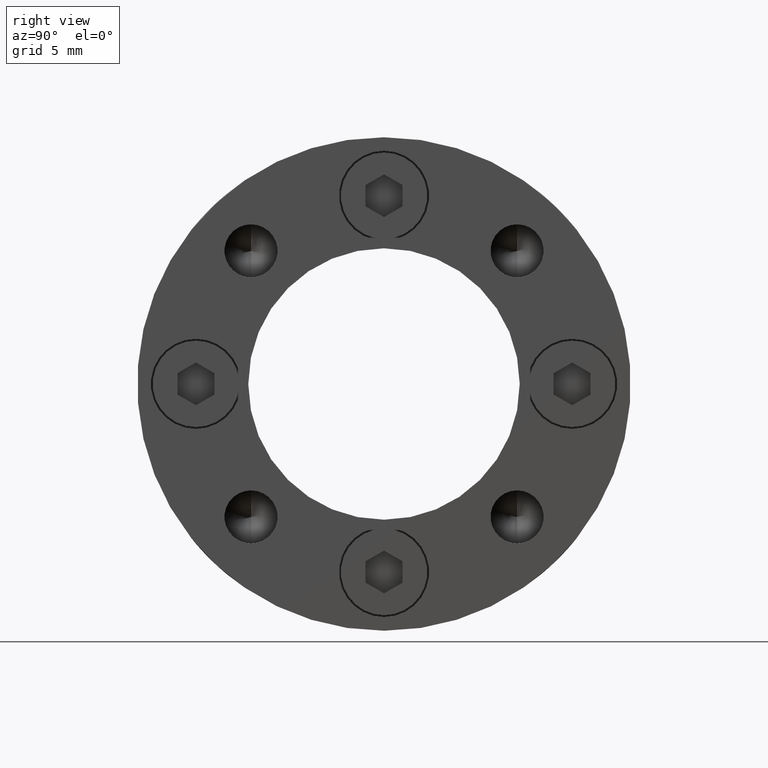
[diagram: clean part render]
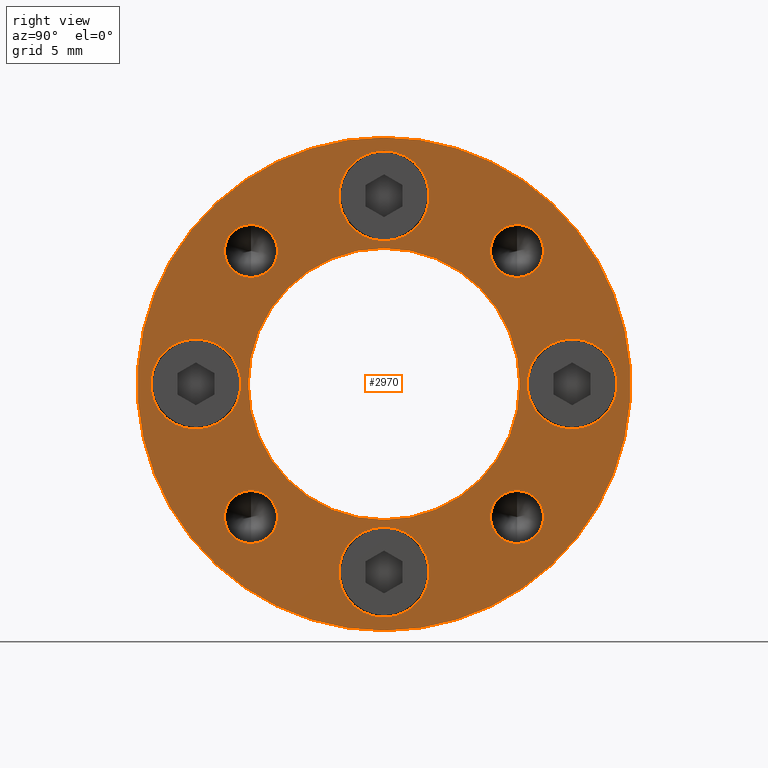
[diagram: same view with one face highlighted and labeled with its STEP entity id]
A machine part, right view. The second image highlights one B-rep face of the part: STEP entity #2970.
In plain terms, the highlighted planar face has unit normal (1, 0, 0).
Its self-contained STEP definition (entity closure, byte-faithful):
#214 = VERTEX_POINT ( 'NONE', #3243 ) ;
#219 = VERTEX_POINT ( 'NONE', #3251 ) ;
#249 = VERTEX_POINT ( 'NONE', #3268 ) ;
#300 = CARTESIAN_POINT ( 'NONE',  ( 17.99999999999999300, -1.867586000000000000E-015, -15.25000000000000700 ) ) ;
#301 = DIRECTION ( 'NONE',  ( -1.000000000000000000, -0.0000000000000000000, -0.0000000000000000000 ) ) ;
#302 = DIRECTION ( 'NONE',  ( 0.0000000000000000000, 0.0000000000000000000, -1.000000000000000000 ) ) ;
#374 = DIRECTION ( 'NONE',  ( -1.000000000000000000, -0.0000000000000000000, -0.0000000000000000000 ) ) ;
#375 = CARTESIAN_POINT ( 'NONE',  ( 17.99999999999999300, -15.25000000000000700, 9.337931999999999500E-016 ) ) ;
#377 = DIRECTION ( 'NONE',  ( 0.0000000000000000000, 0.0000000000000000000, -1.000000000000000000 ) ) ;
#433 = VERTEX_POINT ( 'NONE', #3319 ) ;
#449 = VERTEX_POINT ( 'NONE', #3328 ) ;
#455 = VERTEX_POINT ( 'NONE', #3341 ) ;
#457 = VERTEX_POINT ( 'NONE', #3338 ) ;
#464 = VERTEX_POINT ( 'NONE', #3342 ) ;
#467 = VERTEX_POINT ( 'NONE', #3343 ) ;
#469 = VERTEX_POINT ( 'NONE', #3347 ) ;
#470 = VERTEX_POINT ( 'NONE', #3351 ) ;
#476 = VERTEX_POINT ( 'NONE', #3353 ) ;
#486 = VERTEX_POINT ( 'NONE', #3357 ) ;
#577 = EDGE_CURVE ( 'NONE', #457, #467, #2010, .T. ) ;
#581 = EDGE_CURVE ( 'NONE', #455, #469, #2013, .T. ) ;
#585 = EDGE_CURVE ( 'NONE', #486, #449, #2019, .T. ) ;
#599 = EDGE_CURVE ( 'NONE', #449, #486, #2044, .T. ) ;
#600 = EDGE_CURVE ( 'NONE', #469, #455, #2045, .T. ) ;
#601 = EDGE_CURVE ( 'NONE', #467, #457, #2046, .T. ) ;
#602 = EDGE_CURVE ( 'NONE', #476, #470, #2047, .T. ) ;
#604 = EDGE_CURVE ( 'NONE', #433, #464, #2048, .T. ) ;
#606 = EDGE_CURVE ( 'NONE', #214, #1870, #2050, .T. ) ;
#608 = EDGE_CURVE ( 'NONE', #249, #219, #2052, .T. ) ;
#610 = EDGE_CURVE ( 'NONE', #1868, #1871, #2054, .T. ) ;
#611 = EDGE_CURVE ( 'NONE', #1879, #1877, #2055, .T. ) ;
#612 = EDGE_CURVE ( 'NONE', #1878, #1874, #2056, .T. ) ;
#654 = EDGE_CURVE ( 'NONE', #464, #433, #1513, .T. ) ;
#659 = EDGE_CURVE ( 'NONE', #470, #476, #1521, .T. ) ;
#662 = EDGE_CURVE ( 'NONE', #1874, #1878, #1528, .T. ) ;
#870 = DIRECTION ( 'NONE',  ( 1.000000000000000000, -0.0000000000000000000, 0.0000000000000000000 ) ) ;
#877 = PLANE ( 'NONE',  #1367 ) ;
#879 = CARTESIAN_POINT ( 'NONE',  ( 17.99999999999999300, 15.49999999999999800, 0.0000000000000000000 ) ) ;
#881 = DIRECTION ( 'NONE',  ( 0.0000000000000000000, 0.0000000000000000000, -1.000000000000000000 ) ) ;
#1109 = EDGE_CURVE ( 'NONE', #219, #249, #1589, .T. ) ;
#1114 = EDGE_CURVE ( 'NONE', #1870, #214, #1596, .T. ) ;
#1367 = AXIS2_PLACEMENT_3D ( 'NONE', #879, #870, #881 ) ;
#1513 = CIRCLE ( 'NONE', #2300, 3.649999999999999900 ) ;
#1521 = CIRCLE ( 'NONE', #2302, 2.150000000000000800 ) ;
#1528 = CIRCLE ( 'NONE', #2303, 19.99999999999999600 ) ;
#1589 = CIRCLE ( 'NONE', #2321, 3.649999999999999900 ) ;
#1596 = CIRCLE ( 'NONE', #2323, 3.650000000000000400 ) ;
#1712 = CIRCLE ( 'NONE', #2348, 3.650000000000000400 ) ;
#1719 = CIRCLE ( 'NONE', #2351, 11.00000000000000000 ) ;
#1812 = ORIENTED_EDGE ( 'NONE', *, *, #662, .F. ) ;
#1813 = ORIENTED_EDGE ( 'NONE', *, *, #612, .F. ) ;
#1814 = ORIENTED_EDGE ( 'NONE', *, *, #599, .T. ) ;
#1815 = ORIENTED_EDGE ( 'NONE', *, *, #585, .T. ) ;
#1816 = ORIENTED_EDGE ( 'NONE', *, *, #600, .T. ) ;
#1817 = ORIENTED_EDGE ( 'NONE', *, *, #581, .T. ) ;
#1818 = ORIENTED_EDGE ( 'NONE', *, *, #601, .T. ) ;
#1819 = ORIENTED_EDGE ( 'NONE', *, *, #577, .T. ) ;
#1820 = ORIENTED_EDGE ( 'NONE', *, *, #602, .T. ) ;
#1821 = ORIENTED_EDGE ( 'NONE', *, *, #659, .T. ) ;
#1822 = ORIENTED_EDGE ( 'NONE', *, *, #604, .T. ) ;
#1823 = ORIENTED_EDGE ( 'NONE', *, *, #654, .T. ) ;
#1824 = ORIENTED_EDGE ( 'NONE', *, *, #606, .T. ) ;
#1825 = ORIENTED_EDGE ( 'NONE', *, *, #1114, .T. ) ;
#1826 = ORIENTED_EDGE ( 'NONE', *, *, #608, .T. ) ;
#1827 = ORIENTED_EDGE ( 'NONE', *, *, #1109, .T. ) ;
#1828 = ORIENTED_EDGE ( 'NONE', *, *, #610, .T. ) ;
#1829 = ORIENTED_EDGE ( 'NONE', *, *, #2218, .T. ) ;
#1830 = ORIENTED_EDGE ( 'NONE', *, *, #611, .T. ) ;
#1831 = ORIENTED_EDGE ( 'NONE', *, *, #2223, .T. ) ;
#1868 = VERTEX_POINT ( 'NONE', #2495 ) ;
#1870 = VERTEX_POINT ( 'NONE', #2492 ) ;
#1871 = VERTEX_POINT ( 'NONE', #2488 ) ;
#1874 = VERTEX_POINT ( 'NONE', #2490 ) ;
#1877 = VERTEX_POINT ( 'NONE', #2482 ) ;
#1878 = VERTEX_POINT ( 'NONE', #2481 ) ;
#1879 = VERTEX_POINT ( 'NONE', #2478 ) ;
#1884 = EDGE_LOOP ( 'NONE', ( #1831, #1830 ) ) ;
#1920 = EDGE_LOOP ( 'NONE', ( #1821, #1820 ) ) ;
#1930 = EDGE_LOOP ( 'NONE', ( #1829, #1828 ) ) ;
#1931 = EDGE_LOOP ( 'NONE', ( #1823, #1822 ) ) ;
#1932 = EDGE_LOOP ( 'NONE', ( #1825, #1824 ) ) ;
#1933 = EDGE_LOOP ( 'NONE', ( #1827, #1826 ) ) ;
#1934 = EDGE_LOOP ( 'NONE', ( #1819, #1818 ) ) ;
#1935 = EDGE_LOOP ( 'NONE', ( #1817, #1816 ) ) ;
#1936 = EDGE_LOOP ( 'NONE', ( #1815, #1814 ) ) ;
#1937 = EDGE_LOOP ( 'NONE', ( #1813, #1812 ) ) ;
#2010 = CIRCLE ( 'NONE', #2237, 2.150000000000000800 ) ;
#2013 = CIRCLE ( 'NONE', #2241, 2.150000000000000800 ) ;
#2019 = CIRCLE ( 'NONE', #2243, 2.150000000000000800 ) ;
#2044 = CIRCLE ( 'NONE', #2248, 2.150000000000000800 ) ;
#2045 = CIRCLE ( 'NONE', #2249, 2.150000000000000800 ) ;
#2046 = CIRCLE ( 'NONE', #2250, 2.150000000000000800 ) ;
#2047 = CIRCLE ( 'NONE', #2251, 2.150000000000000800 ) ;
#2048 = CIRCLE ( 'NONE', #2253, 3.649999999999999900 ) ;
#2050 = CIRCLE ( 'NONE', #2255, 3.650000000000000400 ) ;
#2052 = CIRCLE ( 'NONE', #2257, 3.649999999999999900 ) ;
#2054 = CIRCLE ( 'NONE', #2259, 3.650000000000000400 ) ;
#2055 = CIRCLE ( 'NONE', #2260, 11.00000000000000000 ) ;
#2056 = CIRCLE ( 'NONE', #2261, 19.99999999999999600 ) ;
#2102 = DIRECTION ( 'NONE',  ( -1.000000000000000000, -0.0000000000000000000, -0.0000000000000000000 ) ) ;
#2105 = DIRECTION ( 'NONE',  ( 0.0000000000000000000, 0.0000000000000000000, -1.000000000000000000 ) ) ;
#2108 = CARTESIAN_POINT ( 'NONE',  ( 17.99999999999999300, 0.0000000000000000000, 15.25000000000000700 ) ) ;
#2133 = DIRECTION ( 'NONE',  ( 0.0000000000000000000, 0.0000000000000000000, -1.000000000000000000 ) ) ;
#2134 = DIRECTION ( 'NONE',  ( -1.000000000000000000, -0.0000000000000000000, -0.0000000000000000000 ) ) ;
#2135 = CARTESIAN_POINT ( 'NONE',  ( 17.99999999999999600, 0.0000000000000000000, 0.0000000000000000000 ) ) ;
#2218 = EDGE_CURVE ( 'NONE', #1871, #1868, #1712, .T. ) ;
#2223 = EDGE_CURVE ( 'NONE', #1877, #1879, #1719, .T. ) ;
#2237 = AXIS2_PLACEMENT_3D ( 'NONE', #3386, #3390, #3392 ) ;
#2241 = AXIS2_PLACEMENT_3D ( 'NONE', #3488, #3498, #3500 ) ;
#2243 = AXIS2_PLACEMENT_3D ( 'NONE', #3161, #3162, #3163 ) ;
#2248 = AXIS2_PLACEMENT_3D ( 'NONE', #3232, #3234, #3236 ) ;
#2249 = AXIS2_PLACEMENT_3D ( 'NONE', #3247, #3252, #3257 ) ;
#2250 = AXIS2_PLACEMENT_3D ( 'NONE', #3263, #3270, #3273 ) ;
#2251 = AXIS2_PLACEMENT_3D ( 'NONE', #3282, #3283, #3287 ) ;
#2253 = AXIS2_PLACEMENT_3D ( 'NONE', #3312, #3313, #3321 ) ;
#2255 = AXIS2_PLACEMENT_3D ( 'NONE', #3345, #3348, #3349 ) ;
#2257 = AXIS2_PLACEMENT_3D ( 'NONE', #3366, #3368, #3372 ) ;
#2259 = AXIS2_PLACEMENT_3D ( 'NONE', #3379, #3380, #3381 ) ;
#2260 = AXIS2_PLACEMENT_3D ( 'NONE', #3384, #3385, #3387 ) ;
#2261 = AXIS2_PLACEMENT_3D ( 'NONE', #3388, #3389, #3391 ) ;
#2300 = AXIS2_PLACEMENT_3D ( 'NONE', #3455, #3454, #3453 ) ;
#2302 = AXIS2_PLACEMENT_3D ( 'NONE', #3339, #3157, #3302 ) ;
#2303 = AXIS2_PLACEMENT_3D ( 'NONE', #3154, #3153, #3022 ) ;
#2321 = AXIS2_PLACEMENT_3D ( 'NONE', #375, #374, #377 ) ;
#2323 = AXIS2_PLACEMENT_3D ( 'NONE', #300, #301, #302 ) ;
#2348 = AXIS2_PLACEMENT_3D ( 'NONE', #2108, #2102, #2105 ) ;
#2351 = AXIS2_PLACEMENT_3D ( 'NONE', #2135, #2134, #2133 ) ;
#2478 = CARTESIAN_POINT ( 'NONE',  ( 17.99999999999999600, 1.347111479062088400E-015, 11.00000000000000000 ) ) ;
#2481 = CARTESIAN_POINT ( 'NONE',  ( 17.99999999999999300, 0.0000000000000000000, -19.99999999999999600 ) ) ;
#2482 = CARTESIAN_POINT ( 'NONE',  ( 17.99999999999999600, 0.0000000000000000000, -11.00000000000000000 ) ) ;
#2488 = CARTESIAN_POINT ( 'NONE',  ( 17.99999999999999300, 0.0000000000000000000, 11.60000000000000700 ) ) ;
#2490 = CARTESIAN_POINT ( 'NONE',  ( 17.99999999999999300, 2.449293598294706100E-015, 19.99999999999999600 ) ) ;
#2492 = CARTESIAN_POINT ( 'NONE',  ( 17.99999999999999300, -1.867586000000000000E-015, -18.90000000000000600 ) ) ;
#2495 = CARTESIAN_POINT ( 'NONE',  ( 17.99999999999999300, 4.469960816887838400E-016, 18.90000000000000600 ) ) ;
#2741 = FACE_BOUND ( 'NONE', #1933, .T. ) ;
#2744 = FACE_BOUND ( 'NONE', #1932, .T. ) ;
#2747 = FACE_BOUND ( 'NONE', #1884, .T. ) ;
#2748 = FACE_BOUND ( 'NONE', #1931, .T. ) ;
#2750 = FACE_BOUND ( 'NONE', #1930, .T. ) ;
#2751 = FACE_BOUND ( 'NONE', #1920, .T. ) ;
#2752 = FACE_BOUND ( 'NONE', #1934, .T. ) ;
#2753 = FACE_BOUND ( 'NONE', #1935, .T. ) ;
#2754 = FACE_BOUND ( 'NONE', #1936, .T. ) ;
#2755 = FACE_OUTER_BOUND ( 'NONE', #1937, .T. ) ;
#2970 = ADVANCED_FACE ( 'NONE', ( #2747, #2750, #2741, #2744, #2748, #2751, #2752, #2753, #2754, #2755 ), #877, .T. ) ;
#3022 = DIRECTION ( 'NONE',  ( 0.0000000000000000000, 0.0000000000000000000, -1.000000000000000000 ) ) ;
#3153 = DIRECTION ( 'NONE',  ( -1.000000000000000000, -0.0000000000000000000, -0.0000000000000000000 ) ) ;
#3154 = CARTESIAN_POINT ( 'NONE',  ( 17.99999999999999300, 0.0000000000000000000, 0.0000000000000000000 ) ) ;
#3157 = DIRECTION ( 'NONE',  ( -1.000000000000000000, -0.0000000000000000000, -0.0000000000000000000 ) ) ;
#3161 = CARTESIAN_POINT ( 'NONE',  ( 17.99999999999999300, 10.78337841309485300, 10.78337841309484800 ) ) ;
#3162 = DIRECTION ( 'NONE',  ( -1.000000000000000000, -0.0000000000000000000, -0.0000000000000000000 ) ) ;
#3163 = DIRECTION ( 'NONE',  ( 0.0000000000000000000, 0.0000000000000000000, -1.000000000000000000 ) ) ;
#3232 = CARTESIAN_POINT ( 'NONE',  ( 17.99999999999999300, 10.78337841309485300, 10.78337841309484800 ) ) ;
#3234 = DIRECTION ( 'NONE',  ( -1.000000000000000000, -0.0000000000000000000, -0.0000000000000000000 ) ) ;
#3236 = DIRECTION ( 'NONE',  ( 0.0000000000000000000, 0.0000000000000000000, -1.000000000000000000 ) ) ;
#3243 = CARTESIAN_POINT ( 'NONE',  ( 17.99999999999999300, -1.420589918311215900E-015, -11.60000000000000700 ) ) ;
#3247 = CARTESIAN_POINT ( 'NONE',  ( 17.99999999999999300, 10.78337841309485200, -10.78337841309485200 ) ) ;
#3251 = CARTESIAN_POINT ( 'NONE',  ( 17.99999999999999300, -15.25000000000000700, -3.649999999999999000 ) ) ;
#3252 = DIRECTION ( 'NONE',  ( -1.000000000000000000, -0.0000000000000000000, -0.0000000000000000000 ) ) ;
#3257 = DIRECTION ( 'NONE',  ( 0.0000000000000000000, 0.0000000000000000000, -1.000000000000000000 ) ) ;
#3263 = CARTESIAN_POINT ( 'NONE',  ( 17.99999999999999300, -10.78337841309485200, -10.78337841309485200 ) ) ;
#3268 = CARTESIAN_POINT ( 'NONE',  ( 17.99999999999999300, -15.25000000000000700, 3.650000000000000800 ) ) ;
#3270 = DIRECTION ( 'NONE',  ( -1.000000000000000000, -0.0000000000000000000, -0.0000000000000000000 ) ) ;
#3273 = DIRECTION ( 'NONE',  ( 0.0000000000000000000, 0.0000000000000000000, -1.000000000000000000 ) ) ;
#3282 = CARTESIAN_POINT ( 'NONE',  ( 17.99999999999999300, -10.78337841309485200, 10.78337841309485200 ) ) ;
#3283 = DIRECTION ( 'NONE',  ( -1.000000000000000000, -0.0000000000000000000, -0.0000000000000000000 ) ) ;
#3287 = DIRECTION ( 'NONE',  ( 0.0000000000000000000, 0.0000000000000000000, -1.000000000000000000 ) ) ;
#3302 = DIRECTION ( 'NONE',  ( 0.0000000000000000000, 0.0000000000000000000, -1.000000000000000000 ) ) ;
#3312 = CARTESIAN_POINT ( 'NONE',  ( 17.99999999999999300, 15.25000000000000700, -2.801380000000000200E-015 ) ) ;
#3313 = DIRECTION ( 'NONE',  ( -1.000000000000000000, -0.0000000000000000000, -0.0000000000000000000 ) ) ;
#3319 = CARTESIAN_POINT ( 'NONE',  ( 17.99999999999999300, 15.25000000000000700, 3.649999999999997200 ) ) ;
#3321 = DIRECTION ( 'NONE',  ( 0.0000000000000000000, 0.0000000000000000000, -1.000000000000000000 ) ) ;
#3328 = CARTESIAN_POINT ( 'NONE',  ( 17.99999999999999300, 10.78337841309485300, 12.93337841309484800 ) ) ;
#3338 = CARTESIAN_POINT ( 'NONE',  ( 17.99999999999999300, -10.78337841309485200, -12.93337841309485200 ) ) ;
#3339 = CARTESIAN_POINT ( 'NONE',  ( 17.99999999999999300, -10.78337841309485200, 10.78337841309485200 ) ) ;
#3341 = CARTESIAN_POINT ( 'NONE',  ( 17.99999999999999300, 10.78337841309485200, -12.93337841309485200 ) ) ;
#3342 = CARTESIAN_POINT ( 'NONE',  ( 17.99999999999999300, 15.25000000000000700, -3.650000000000002600 ) ) ;
#3343 = CARTESIAN_POINT ( 'NONE',  ( 17.99999999999999300, -10.78337841309485200, -8.633378413094851200 ) ) ;
#3345 = CARTESIAN_POINT ( 'NONE',  ( 17.99999999999999300, -1.867586000000000000E-015, -15.25000000000000700 ) ) ;
#3347 = CARTESIAN_POINT ( 'NONE',  ( 17.99999999999999300, 10.78337841309485200, -8.633378413094851200 ) ) ;
#3348 = DIRECTION ( 'NONE',  ( -1.000000000000000000, -0.0000000000000000000, -0.0000000000000000000 ) ) ;
#3349 = DIRECTION ( 'NONE',  ( 0.0000000000000000000, 0.0000000000000000000, -1.000000000000000000 ) ) ;
#3351 = CARTESIAN_POINT ( 'NONE',  ( 17.99999999999999300, -10.78337841309485200, 8.633378413094851200 ) ) ;
#3353 = CARTESIAN_POINT ( 'NONE',  ( 17.99999999999999300, -10.78337841309485200, 12.93337841309485200 ) ) ;
#3357 = CARTESIAN_POINT ( 'NONE',  ( 17.99999999999999300, 10.78337841309485300, 8.633378413094847700 ) ) ;
#3366 = CARTESIAN_POINT ( 'NONE',  ( 17.99999999999999300, -15.25000000000000700, 9.337931999999999500E-016 ) ) ;
#3368 = DIRECTION ( 'NONE',  ( -1.000000000000000000, -0.0000000000000000000, -0.0000000000000000000 ) ) ;
#3372 = DIRECTION ( 'NONE',  ( 0.0000000000000000000, 0.0000000000000000000, -1.000000000000000000 ) ) ;
#3379 = CARTESIAN_POINT ( 'NONE',  ( 17.99999999999999300, 0.0000000000000000000, 15.25000000000000700 ) ) ;
#3380 = DIRECTION ( 'NONE',  ( -1.000000000000000000, -0.0000000000000000000, -0.0000000000000000000 ) ) ;
#3381 = DIRECTION ( 'NONE',  ( 0.0000000000000000000, 0.0000000000000000000, -1.000000000000000000 ) ) ;
#3384 = CARTESIAN_POINT ( 'NONE',  ( 17.99999999999999600, 0.0000000000000000000, 0.0000000000000000000 ) ) ;
#3385 = DIRECTION ( 'NONE',  ( -1.000000000000000000, -0.0000000000000000000, -0.0000000000000000000 ) ) ;
#3386 = CARTESIAN_POINT ( 'NONE',  ( 17.99999999999999300, -10.78337841309485200, -10.78337841309485200 ) ) ;
#3387 = DIRECTION ( 'NONE',  ( 0.0000000000000000000, 0.0000000000000000000, -1.000000000000000000 ) ) ;
#3388 = CARTESIAN_POINT ( 'NONE',  ( 17.99999999999999300, 0.0000000000000000000, 0.0000000000000000000 ) ) ;
#3389 = DIRECTION ( 'NONE',  ( -1.000000000000000000, -0.0000000000000000000, -0.0000000000000000000 ) ) ;
#3390 = DIRECTION ( 'NONE',  ( -1.000000000000000000, -0.0000000000000000000, -0.0000000000000000000 ) ) ;
#3391 = DIRECTION ( 'NONE',  ( 0.0000000000000000000, 0.0000000000000000000, -1.000000000000000000 ) ) ;
#3392 = DIRECTION ( 'NONE',  ( 0.0000000000000000000, 0.0000000000000000000, -1.000000000000000000 ) ) ;
#3453 = DIRECTION ( 'NONE',  ( 0.0000000000000000000, 0.0000000000000000000, -1.000000000000000000 ) ) ;
#3454 = DIRECTION ( 'NONE',  ( -1.000000000000000000, -0.0000000000000000000, -0.0000000000000000000 ) ) ;
#3455 = CARTESIAN_POINT ( 'NONE',  ( 17.99999999999999300, 15.25000000000000700, -2.801380000000000200E-015 ) ) ;
#3488 = CARTESIAN_POINT ( 'NONE',  ( 17.99999999999999300, 10.78337841309485200, -10.78337841309485200 ) ) ;
#3498 = DIRECTION ( 'NONE',  ( -1.000000000000000000, -0.0000000000000000000, -0.0000000000000000000 ) ) ;
#3500 = DIRECTION ( 'NONE',  ( 0.0000000000000000000, 0.0000000000000000000, -1.000000000000000000 ) ) ;